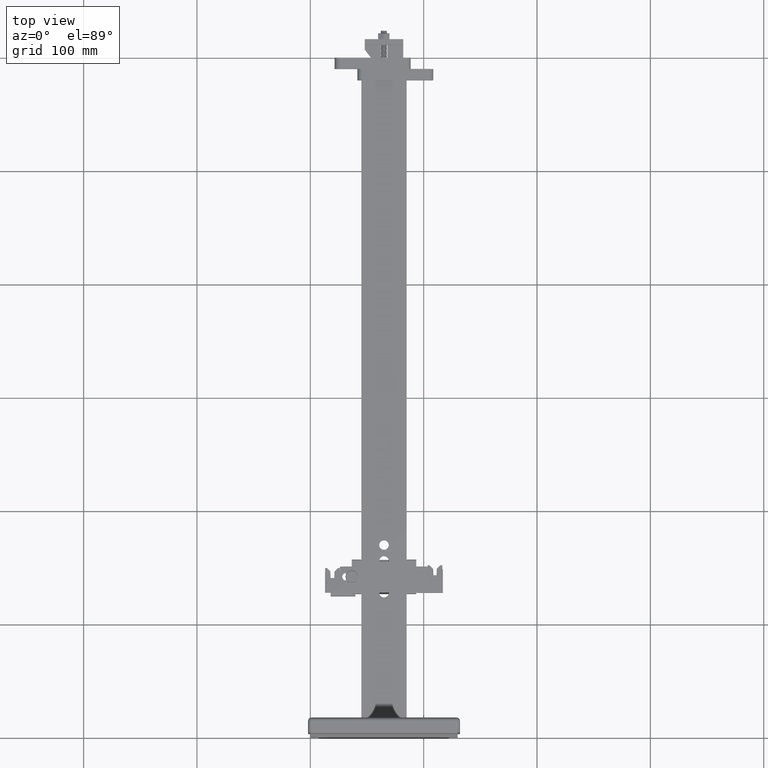
[diagram: clean part render]
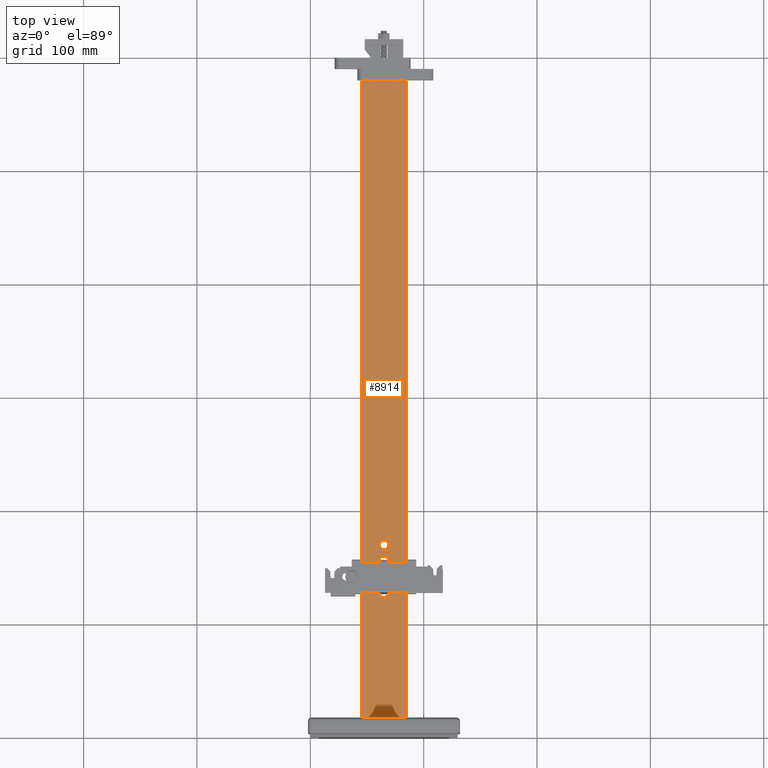
[diagram: same view with one face highlighted and labeled with its STEP entity id]
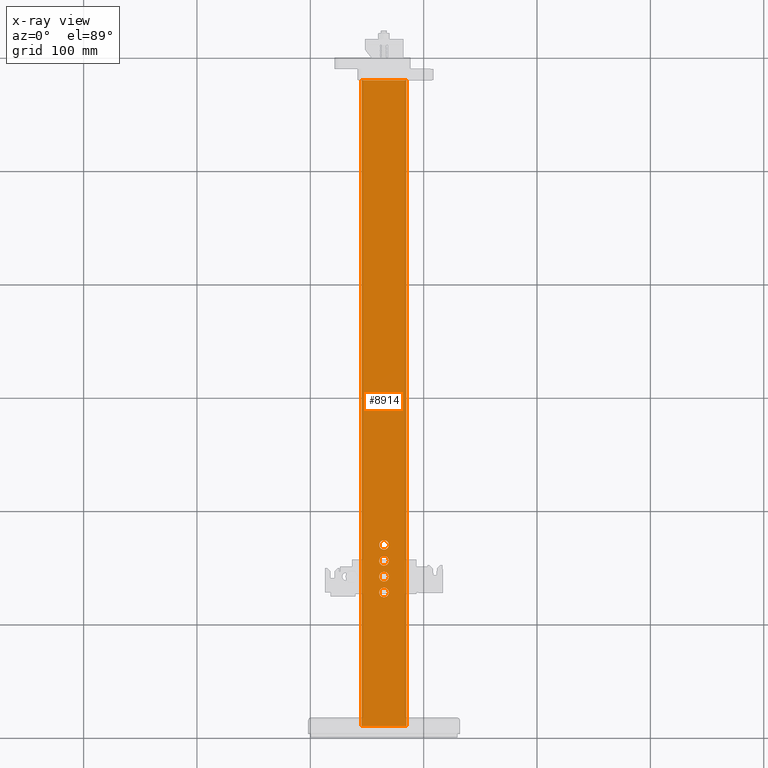
[diagram: x-ray of the same camera — body ghosted, the highlighted face saturated]
A machine part, top view. The second image highlights one B-rep face of the part: STEP entity #8914.
The next image is the same camera in x-ray: the body ghosted, the highlighted face saturated — about 0% of this face is hidden behind the body in this view.
In plain terms, the highlighted planar face has unit normal (0, 0, 1).
Its self-contained STEP definition (entity closure, byte-faithful):
#577=FACE_BOUND('',#1574,.T.);
#578=FACE_BOUND('',#1575,.T.);
#579=FACE_BOUND('',#1576,.T.);
#580=FACE_BOUND('',#1577,.T.);
#622=CIRCLE('',#9572,4.25000000000001);
#626=CIRCLE('',#9578,4.25000000000001);
#630=CIRCLE('',#9584,4.25000000000001);
#634=CIRCLE('',#9590,4.25000000000001);
#1056=FACE_OUTER_BOUND('',#1573,.T.);
#1573=EDGE_LOOP('',(#6226,#6227,#6228,#6229));
#1574=EDGE_LOOP('',(#6230));
#1575=EDGE_LOOP('',(#6231));
#1576=EDGE_LOOP('',(#6232));
#1577=EDGE_LOOP('',(#6233));
#2146=LINE('',#12628,#2959);
#2154=LINE('',#12643,#2967);
#2155=LINE('',#12645,#2968);
#2156=LINE('',#12646,#2969);
#2959=VECTOR('',#10476,10.);
#2967=VECTOR('',#10488,10.);
#2968=VECTOR('',#10491,10.);
#2969=VECTOR('',#10492,10.);
#3738=VERTEX_POINT('',#12560);
#3742=VERTEX_POINT('',#12572);
#3746=VERTEX_POINT('',#12584);
#3750=VERTEX_POINT('',#12596);
#3760=VERTEX_POINT('',#12625);
#3761=VERTEX_POINT('',#12627);
#3765=VERTEX_POINT('',#12639);
#3766=VERTEX_POINT('',#12641);
#4674=EDGE_CURVE('',#3738,#3738,#622,.T.);
#4680=EDGE_CURVE('',#3742,#3742,#626,.T.);
#4686=EDGE_CURVE('',#3746,#3746,#630,.T.);
#4692=EDGE_CURVE('',#3750,#3750,#634,.T.);
#4706=EDGE_CURVE('',#3760,#3761,#2146,.T.);
#4714=EDGE_CURVE('',#3765,#3766,#2154,.T.);
#4715=EDGE_CURVE('',#3760,#3765,#2155,.T.);
#4716=EDGE_CURVE('',#3761,#3766,#2156,.T.);
#6226=ORIENTED_EDGE('',*,*,#4715,.T.);
#6227=ORIENTED_EDGE('',*,*,#4714,.T.);
#6228=ORIENTED_EDGE('',*,*,#4716,.F.);
#6229=ORIENTED_EDGE('',*,*,#4706,.F.);
#6230=ORIENTED_EDGE('',*,*,#4674,.T.);
#6231=ORIENTED_EDGE('',*,*,#4680,.T.);
#6232=ORIENTED_EDGE('',*,*,#4686,.T.);
#6233=ORIENTED_EDGE('',*,*,#4692,.T.);
#8681=PLANE('',#9598);
#8914=ADVANCED_FACE('',(#1056,#577,#578,#579,#580),#8681,.T.);
#9572=AXIS2_PLACEMENT_3D('',#12562,#10409,#10410);
#9578=AXIS2_PLACEMENT_3D('',#12574,#10423,#10424);
#9584=AXIS2_PLACEMENT_3D('',#12586,#10437,#10438);
#9590=AXIS2_PLACEMENT_3D('',#12598,#10451,#10452);
#9598=AXIS2_PLACEMENT_3D('',#12644,#10489,#10490);
#10409=DIRECTION('center_axis',(0.,0.,-1.));
#10410=DIRECTION('ref_axis',(-1.,0.,0.));
#10423=DIRECTION('center_axis',(0.,0.,-1.));
#10424=DIRECTION('ref_axis',(-1.,0.,0.));
#10437=DIRECTION('center_axis',(0.,0.,-1.));
#10438=DIRECTION('ref_axis',(-1.,0.,0.));
#10451=DIRECTION('center_axis',(0.,0.,-1.));
#10452=DIRECTION('ref_axis',(-1.,0.,0.));
#10476=DIRECTION('',(1.,0.,0.));
#10488=DIRECTION('',(1.,0.,0.));
#10489=DIRECTION('center_axis',(0.,0.,1.));
#10490=DIRECTION('ref_axis',(0.,-1.,0.));
#10491=DIRECTION('',(0.,-1.,0.));
#10492=DIRECTION('',(0.,-1.,0.));
#12560=CARTESIAN_POINT('',(150.25,20.,0.));
#12562=CARTESIAN_POINT('Origin',(146.,20.,0.));
#12572=CARTESIAN_POINT('',(136.25,20.,0.));
#12574=CARTESIAN_POINT('Origin',(132.,20.,0.));
#12584=CARTESIAN_POINT('',(164.25,20.,0.));
#12586=CARTESIAN_POINT('Origin',(160.,20.,0.));
#12596=CARTESIAN_POINT('',(122.25,20.,0.));
#12598=CARTESIAN_POINT('Origin',(118.,20.,0.));
#12625=CARTESIAN_POINT('',(0.,40.,0.));
#12627=CARTESIAN_POINT('',(570.,40.,0.));
#12628=CARTESIAN_POINT('',(0.,40.,0.));
#12639=CARTESIAN_POINT('',(0.,0.,0.));
#12641=CARTESIAN_POINT('',(570.,0.,0.));
#12643=CARTESIAN_POINT('',(0.,0.,0.));
#12644=CARTESIAN_POINT('Origin',(0.,40.,0.));
#12645=CARTESIAN_POINT('',(0.,40.,0.));
#12646=CARTESIAN_POINT('',(570.,40.,0.));